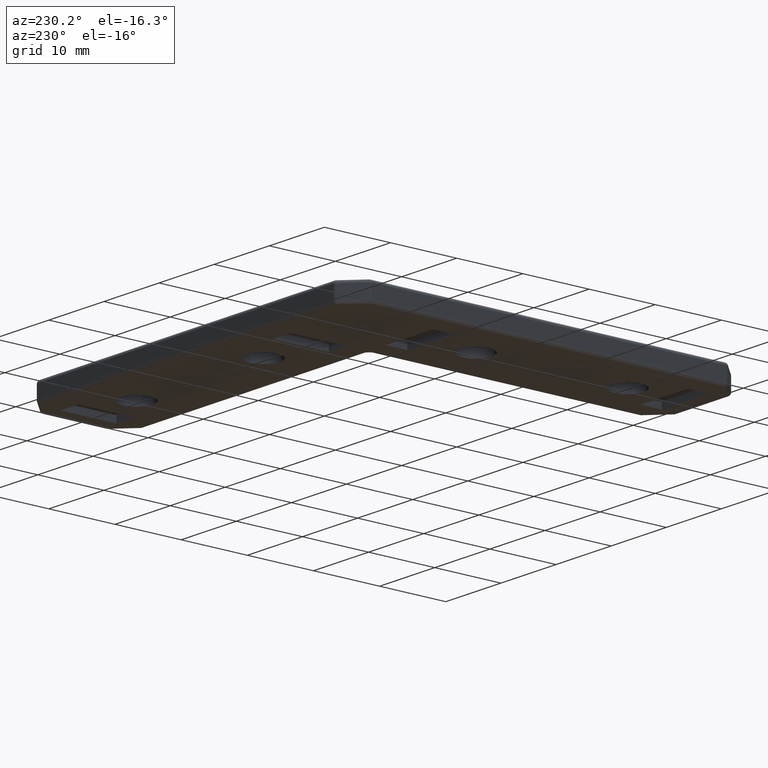
[diagram: clean part render]
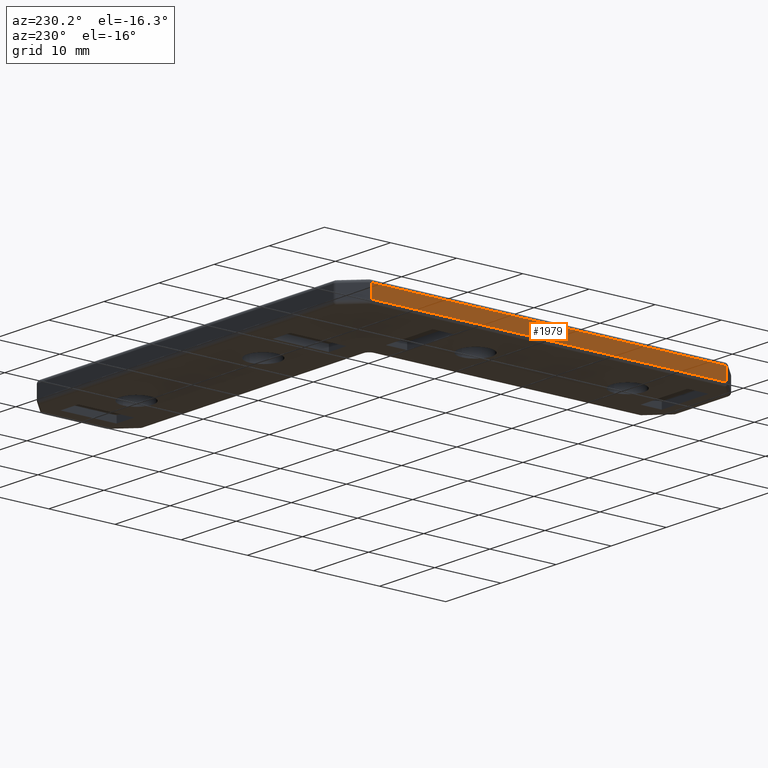
[diagram: same view with one face highlighted and labeled with its STEP entity id]
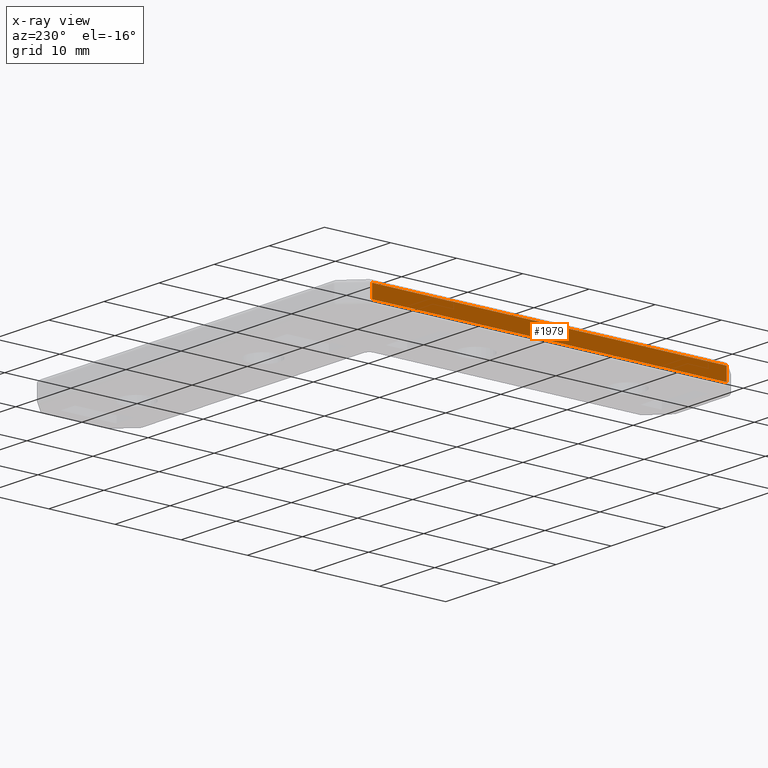
[diagram: x-ray of the same camera — body ghosted, the highlighted face saturated]
A machine part, auxiliary view. The second image highlights one B-rep face of the part: STEP entity #1979.
The next image is the same camera in x-ray: the body ghosted, the highlighted face saturated — about 0% of this face is hidden behind the body in this view.
In plain terms, the highlighted planar face has unit normal (-1, 0, 0).
Its self-contained STEP definition (entity closure, byte-faithful):
#184=PLANE('',#2201);
#312=FACE_OUTER_BOUND('',#460,.T.);
#460=EDGE_LOOP('',(#1792,#1793,#1794,#1795));
#617=LINE('',#3286,#795);
#621=LINE('',#3306,#799);
#625=LINE('',#3319,#803);
#629=LINE('',#3325,#807);
#795=VECTOR('',#2696,53.5857864376269);
#799=VECTOR('',#2720,2.);
#803=VECTOR('',#2736,53.5857864376269);
#807=VECTOR('',#2744,2.);
#972=VERTEX_POINT('',#3258);
#979=VERTEX_POINT('',#3276);
#984=VERTEX_POINT('',#3298);
#987=VERTEX_POINT('',#3311);
#1212=EDGE_CURVE('',#972,#979,#617,.T.);
#1222=EDGE_CURVE('',#984,#972,#621,.T.);
#1229=EDGE_CURVE('',#987,#984,#625,.T.);
#1233=EDGE_CURVE('',#979,#987,#629,.T.);
#1792=ORIENTED_EDGE('',*,*,#1212,.F.);
#1793=ORIENTED_EDGE('',*,*,#1222,.F.);
#1794=ORIENTED_EDGE('',*,*,#1229,.F.);
#1795=ORIENTED_EDGE('',*,*,#1233,.F.);
#1979=ADVANCED_FACE('',(#312),#184,.T.);
#2201=AXIS2_PLACEMENT_3D('',#3376,#2819,#2820);
#2696=DIRECTION('',(0.,1.,0.));
#2720=DIRECTION('',(0.,0.,-1.));
#2736=DIRECTION('',(0.,-1.,0.));
#2744=DIRECTION('',(0.,0.,1.));
#2819=DIRECTION('center_axis',(-1.,0.,0.));
#2820=DIRECTION('ref_axis',(0.,-1.,0.));
#3258=CARTESIAN_POINT('',(-16.,-40.7928932188134,0.5));
#3276=CARTESIAN_POINT('',(-16.,12.7928932188135,0.5));
#3286=CARTESIAN_POINT('',(-16.,5.03333333333334,0.5));
#3298=CARTESIAN_POINT('',(-16.,-40.7928932188134,2.5));
#3306=CARTESIAN_POINT('',(-16.,-40.7928932188134,0.));
#3311=CARTESIAN_POINT('',(-16.,12.7928932188135,2.5));
#3319=CARTESIAN_POINT('',(-16.,5.03333333333334,2.5));
#3325=CARTESIAN_POINT('',(-16.,12.7928932188135,0.));
#3376=CARTESIAN_POINT('Origin',(-16.,16.,0.));